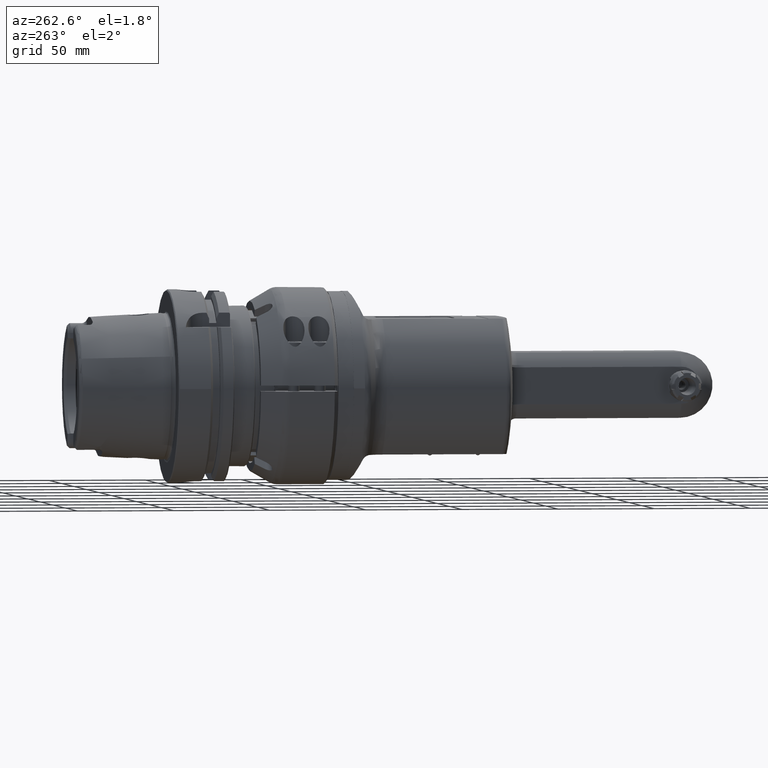
[diagram: clean part render]
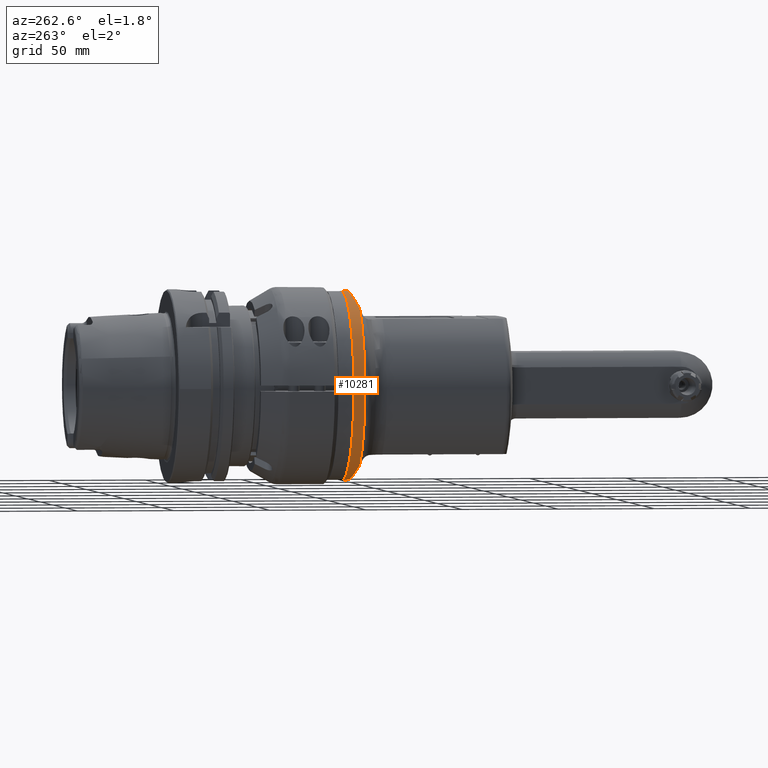
[diagram: same view with one face highlighted and labeled with its STEP entity id]
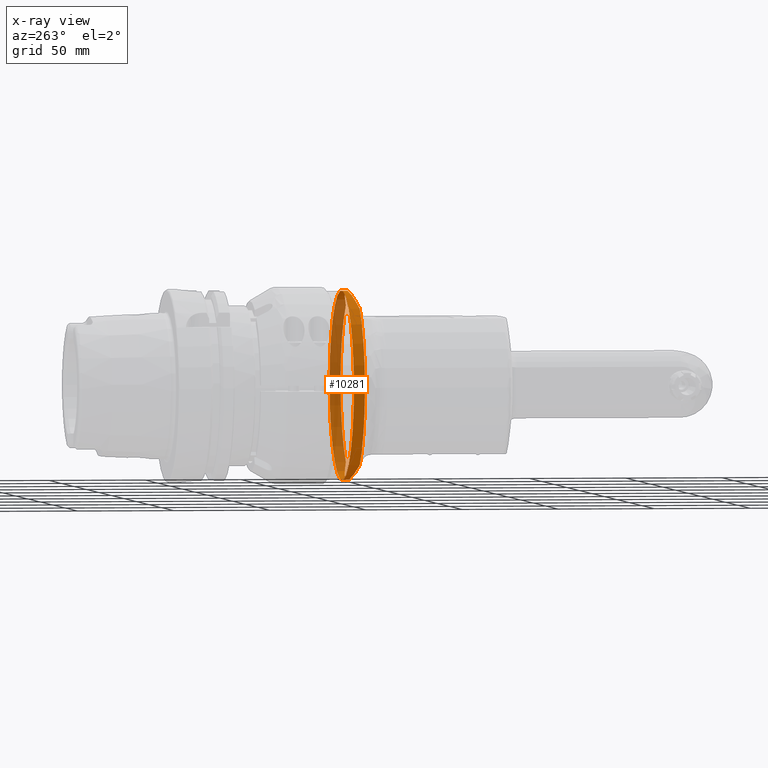
[diagram: x-ray of the same camera — body ghosted, the highlighted face saturated]
A machine part, auxiliary view. The second image highlights one B-rep face of the part: STEP entity #10281.
The next image is the same camera in x-ray: the body ghosted, the highlighted face saturated — about 47% of this face is hidden behind the body in this view.
In plain terms, the highlighted cylindrical surface (bore or boss wall) has radius 49 mm, axis along (-0, 1, 0).
Its self-contained STEP definition (entity closure, byte-faithful):
#42=ELLIPSE('',#11082,52.1447108513203,49.);
#43=ELLIPSE('',#11085,52.1447108513203,49.);
#624=CYLINDRICAL_SURFACE('',#11083,49.);
#781=CIRCLE('',#10891,49.);
#782=CIRCLE('',#10892,49.);
#874=CIRCLE('',#11080,49.);
#875=CIRCLE('',#11084,49.);
#1400=FACE_OUTER_BOUND('',#2050,.T.);
#2050=EDGE_LOOP('',(#7310,#7311,#7312,#7313,#7314,#7315,#7316,#7317));
#2785=LINE('',#16188,#3537);
#3537=VECTOR('',#12576,49.);
#4211=VERTEX_POINT('',#15264);
#4212=VERTEX_POINT('',#15269);
#4213=VERTEX_POINT('',#15271);
#4365=VERTEX_POINT('',#16172);
#4366=VERTEX_POINT('',#16177);
#4367=VERTEX_POINT('',#16186);
#5249=EDGE_CURVE('',#4211,#4212,#781,.T.);
#5250=EDGE_CURVE('',#4212,#4213,#782,.T.);
#5486=EDGE_CURVE('',#4365,#4366,#874,.T.);
#5488=EDGE_CURVE('',#4366,#4211,#42,.T.);
#5489=EDGE_CURVE('',#4367,#4367,#875,.T.);
#5490=EDGE_CURVE('',#4367,#4212,#2785,.T.);
#5491=EDGE_CURVE('',#4213,#4365,#43,.T.);
#7310=ORIENTED_EDGE('',*,*,#5489,.F.);
#7311=ORIENTED_EDGE('',*,*,#5490,.T.);
#7312=ORIENTED_EDGE('',*,*,#5249,.F.);
#7313=ORIENTED_EDGE('',*,*,#5488,.F.);
#7314=ORIENTED_EDGE('',*,*,#5486,.F.);
#7315=ORIENTED_EDGE('',*,*,#5491,.F.);
#7316=ORIENTED_EDGE('',*,*,#5250,.F.);
#7317=ORIENTED_EDGE('',*,*,#5490,.F.);
#10281=ADVANCED_FACE('',(#1400),#624,.T.);
#10891=AXIS2_PLACEMENT_3D('',#15270,#12100,#12101);
#10892=AXIS2_PLACEMENT_3D('',#15272,#12102,#12103);
#11080=AXIS2_PLACEMENT_3D('',#16178,#12566,#12567);
#11082=AXIS2_PLACEMENT_3D('',#16184,#12570,#12571);
#11083=AXIS2_PLACEMENT_3D('',#16185,#12572,#12573);
#11084=AXIS2_PLACEMENT_3D('',#16187,#12574,#12575);
#11085=AXIS2_PLACEMENT_3D('',#16189,#12577,#12578);
#12100=DIRECTION('center_axis',(1.,0.,0.));
#12101=DIRECTION('ref_axis',(0.,-1.,0.));
#12102=DIRECTION('center_axis',(1.,0.,0.));
#12103=DIRECTION('ref_axis',(0.,-1.,0.));
#12566=DIRECTION('center_axis',(1.,0.,0.));
#12567=DIRECTION('ref_axis',(0.,1.,0.));
#12570=DIRECTION('center_axis',(0.939692620785897,0.,0.342020143325699));
#12571=DIRECTION('ref_axis',(0.342020143325699,0.,-0.939692620785897));
#12572=DIRECTION('center_axis',(-1.,0.,0.));
#12573=DIRECTION('ref_axis',(0.,1.,0.));
#12574=DIRECTION('center_axis',(-1.,0.,0.));
#12575=DIRECTION('ref_axis',(0.,-1.,0.));
#12576=DIRECTION('',(1.,0.,0.));
#12577=DIRECTION('center_axis',(0.939692620785897,0.,-0.342020143325699));
#12578=DIRECTION('ref_axis',(-0.342020143325699,0.,-0.939692620785897));
#15264=CARTESIAN_POINT('',(1.929964927799,-27.58617101538,40.49695258547));
#15269=CARTESIAN_POINT('',(1.929964927799,-49.,6.00076931582203E-15));
#15270=CARTESIAN_POINT('Origin',(1.929964927799,0.,0.));
#15271=CARTESIAN_POINT('',(1.929964927799,-27.58617101538,-40.49695258547));
#15272=CARTESIAN_POINT('Origin',(1.929964927799,0.,0.));
#16172=CARTESIAN_POINT('',(1.929964927799,27.58617101538,-40.49695258547));
#16177=CARTESIAN_POINT('',(1.929964927798,27.58617101538,40.49695258548));
#16178=CARTESIAN_POINT('Origin',(1.929964927799,0.,0.));
#16184=CARTESIAN_POINT('Origin',(16.6696502474024,0.,0.));
#16185=CARTESIAN_POINT('Origin',(24.00758622135,0.,0.));
#16186=CARTESIAN_POINT('',(-3.8,-49.,6.00076931582203E-15));
#16187=CARTESIAN_POINT('Origin',(-3.8,0.,0.));
#16188=CARTESIAN_POINT('',(24.00758622135,-49.,6.00076931582203E-15));
#16189=CARTESIAN_POINT('Origin',(16.6696502474024,0.,0.));